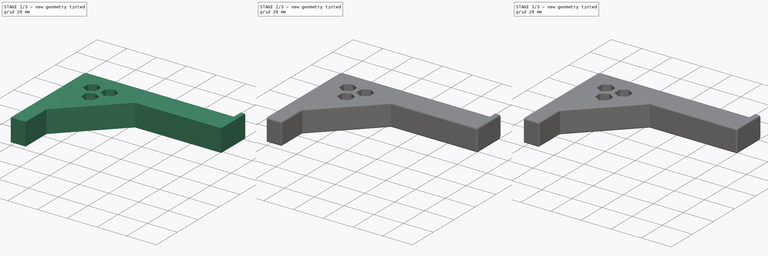
[diagram: build sequence overview — one tinted view per stage of 3, left to right]
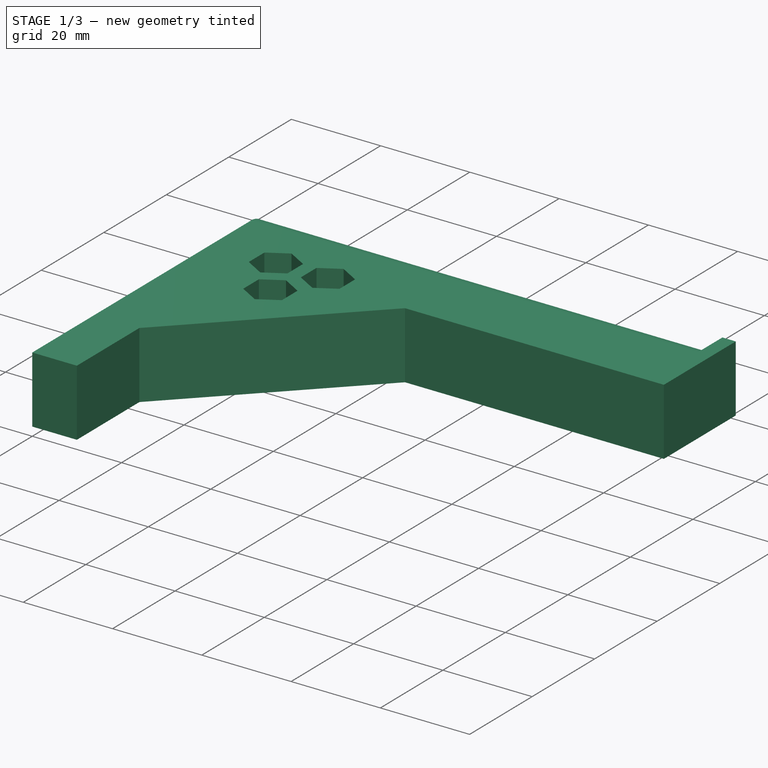
[diagram: stage 1 of 3 — iso view after this stage's code; geometry added in this stage tinted green]
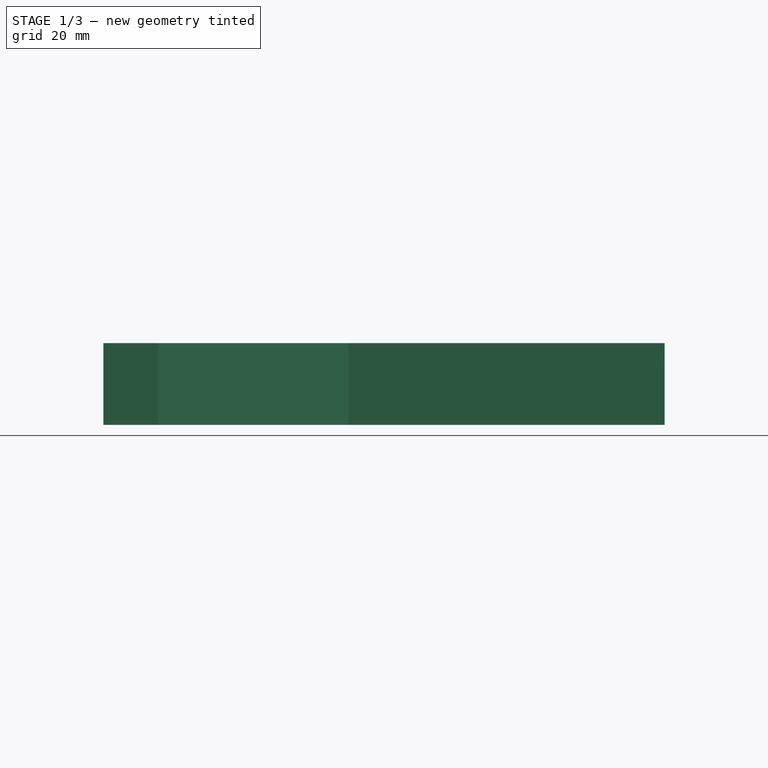
[diagram: stage 1 of 3 — front view after this stage's code; geometry added in this stage tinted green]
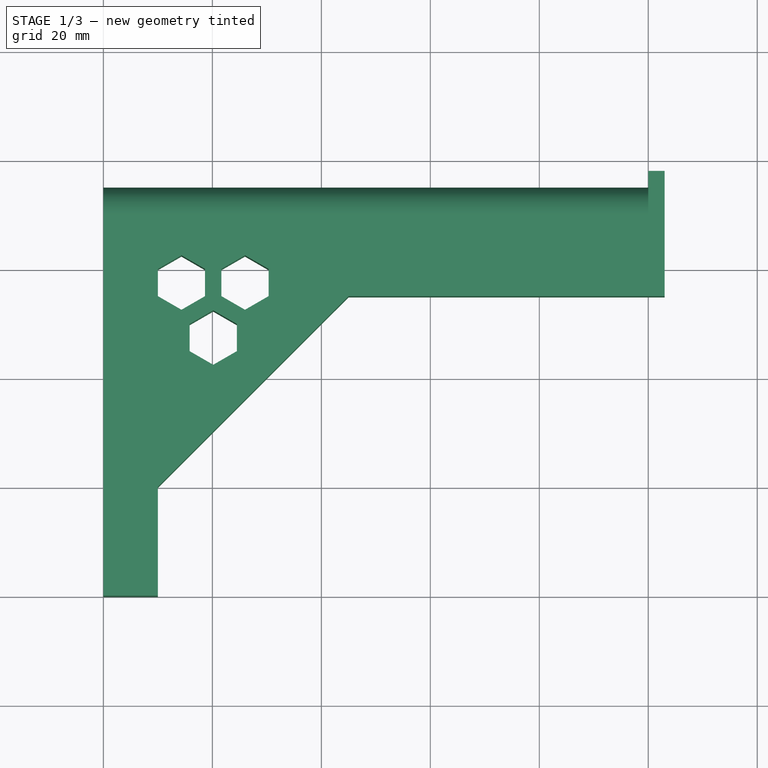
[diagram: stage 1 of 3 — top view after this stage's code; geometry added in this stage tinted green]
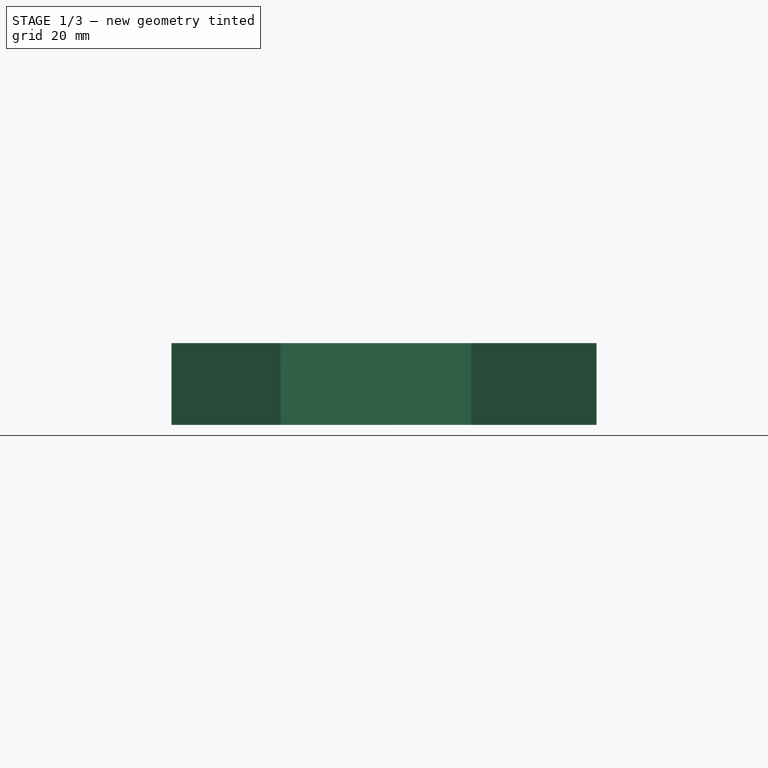
[diagram: stage 1 of 3 — right view after this stage's code; geometry added in this stage tinted green]
FCSTD DOCUMENT  (FreeCAD 0.19R)
Label: HeadPhoneHolder_NEC
License: All rights reserved
LicenseURL: http://en.wikipedia.org/wiki/All_rights_reserved
objects: Sketcher::SketchObject×4, PartDesign::Fillet×4, PartDesign::Pad×2, PartDesign::Body×1
note: 17 computed .brp shape members not serialized (recipe doc carries the construction recipe); baked Part::Feature solids carry a one-line shape summary decoded from their .brp

FEATURE [Sketcher::SketchObject] Sketch
  FullyConstrained = false
  MapMode = 5
  Support = -> [XY_Plane]
  sketch-geometry (35):
    g0: LineSegment StartX=0 StartY=0 StartZ=0 EndX=0 EndY=75 EndZ=0
    g1: LineSegment StartX=0 StartY=75 StartZ=0 EndX=100 EndY=75 EndZ=0
    g2: LineSegment StartX=103 StartY=55 StartZ=0 EndX=45 EndY=55 EndZ=0
    g3: LineSegment StartX=45 StartY=55 StartZ=0 EndX=10 EndY=20 EndZ=0
    g4: LineSegment StartX=10 StartY=20 StartZ=0 EndX=10 EndY=0 EndZ=0
    g5: LineSegment StartX=10 StartY=0 StartZ=0 EndX=0 EndY=0 EndZ=0
    g6: LineSegment StartX=100 StartY=75 StartZ=0 EndX=100 EndY=78 EndZ=0
    g7: LineSegment StartX=100 StartY=78 StartZ=0 EndX=103 EndY=78 EndZ=0
    g8: LineSegment StartX=103 StartY=78 StartZ=0 EndX=103 EndY=55 EndZ=0
    g9: LineSegment StartX=10 StartY=20 StartZ=0 EndX=10 EndY=55 EndZ=0
    g10: LineSegment StartX=10 StartY=55 StartZ=0 EndX=45 EndY=55 EndZ=0
    g11: LineSegment StartX=18.6603 StartY=55 StartZ=0 EndX=18.6603 EndY=60 EndZ=0
    g12: LineSegment StartX=18.6603 StartY=60 StartZ=0 EndX=14.3301 EndY=62.5 EndZ=0
    g13: LineSegment StartX=14.3301 StartY=62.5 StartZ=0 EndX=10 EndY=60 EndZ=0
    g14: LineSegment StartX=10 StartY=60 StartZ=0 EndX=10 EndY=55 EndZ=0
    g15: LineSegment StartX=10 StartY=55 StartZ=0 EndX=14.3301 EndY=52.5 EndZ=0
    g16: LineSegment StartX=14.3301 StartY=52.5 StartZ=0 EndX=18.6603 EndY=55 EndZ=0
    g17: Circle CenterX=14.3301 CenterY=57.5 CenterZ=0 NormalX=0 NormalY=0 NormalZ=1 AngleXU=0 Radius=5
    g18: LineSegment StartX=24.4904 StartY=44.9019 StartZ=0 EndX=24.4904 EndY=49.9019 EndZ=0
    g19: LineSegment StartX=24.4904 StartY=49.9019 StartZ=0 EndX=20.1603 EndY=52.4019 EndZ=0
    g20: LineSegment StartX=20.1603 StartY=52.4019 StartZ=0 EndX=15.8301 EndY=49.9019 EndZ=0
    g21: LineSegment StartX=15.8301 StartY=49.9019 StartZ=0 EndX=15.8301 EndY=44.9019 EndZ=0
    g22: LineSegment StartX=15.8301 StartY=44.9019 StartZ=0 EndX=20.1603 EndY=42.4019 EndZ=0
    g23: LineSegment StartX=20.1603 StartY=42.4019 StartZ=0 EndX=24.4904 EndY=44.9019 EndZ=0
    g24: Circle CenterX=20.1603 CenterY=47.4019 CenterZ=0 NormalX=0 NormalY=0 NormalZ=1 AngleXU=0 Radius=5
    g25: LineSegment StartX=30.3205 StartY=55 StartZ=0 EndX=30.3205 EndY=60 EndZ=0
    g26: LineSegment StartX=30.3205 StartY=60 StartZ=0 EndX=25.9904 EndY=62.5 EndZ=0
    g27: LineSegment StartX=25.9904 StartY=62.5 StartZ=0 EndX=21.6603 EndY=60 EndZ=0
    g28: LineSegment StartX=21.6603 StartY=60 StartZ=0 EndX=21.6603 EndY=55 EndZ=0
    g29: LineSegment StartX=21.6603 StartY=55 StartZ=0 EndX=25.9904 EndY=52.5 EndZ=0
    g30: LineSegment StartX=25.9904 StartY=52.5 StartZ=0 EndX=30.3205 EndY=55 EndZ=0
    g31: Circle CenterX=25.9904 CenterY=57.5 CenterZ=0 NormalX=0 NormalY=0 NormalZ=1 AngleXU=0 Radius=5
    g32: LineSegment StartX=18.6603 StartY=55 StartZ=0 EndX=21.6603 EndY=55 EndZ=0
    g33: LineSegment StartX=21.6603 StartY=55 StartZ=0 EndX=20.1603 EndY=52.4019 EndZ=0
    g34: LineSegment StartX=20.1603 StartY=52.4019 StartZ=0 EndX=18.6603 EndY=55 EndZ=0
  constraints (87):
    c: Vertical(g0)
    c: Coincident(g0,g1)
    c: Horizontal(g1)
    c: Horizontal(g2)
    c: Coincident(g2,g3)
    c: Coincident(g3,g4)
    c: Vertical(g4)
    c: Coincident(g4,g5)
    c: Coincident(g5,g0)
    c: Horizontal(g5)
    c: DistanceX(g1,g1) = 100
    c: DistanceX(g5,g5) = 10
    c: Angle(g4,g3) = 2.35619
    c: DistanceY(g0,g0) = 75
    c: DistanceY(g4,g4) = 20
    c: Coincident(g0,g-1)
    c: Coincident(g1,g6)
    c: Vertical(g6)
    c: Coincident(g6,g7)
    c: Horizontal(g7)
    c: Coincident(g7,g8)
    c: Coincident(g8,g2)
    c: Vertical(g8)
    c: DistanceX(g7,g7) = 3
    c: DistanceY(g6,g6) = 3
    c: DistanceY(g8,g8) = 23
    c: Coincident(g3,g9)
    c: Vertical(g9)
    c: Coincident(g10,g2)
    c: Horizontal(g10)
    c: Coincident(g11,g12)
    c: Coincident(g12,g13)
    c: Coincident(g13,g14)
    c: Coincident(g14,g15)
    c: Coincident(g15,g16)
    c: Coincident(g16,g11)
    c: Equal(g11, g12-g16) x5
    c: PointOnObject(g11,g17)
    c: PointOnObject(g12,g17)
    c: PointOnObject(g13,g17)
    c: PointOnObject(g14,g17)
    c: PointOnObject(g15,g17)
    c: PointOnObject(g16,g17)
    c: Vertical(g14)
    c: Coincident(g18,g19)
    c: Coincident(g19,g20)
    c: Coincident(g20,g21)
    c: Coincident(g21,g22)
    c: Coincident(g22,g23)
    c: Coincident(g23,g18)
    c: Equal(g18, g19-g23) x5
    c: PointOnObject(g18,g24)
    c: PointOnObject(g19,g24)
    c: PointOnObject(g20,g24)
    c: PointOnObject(g21,g24)
    c: PointOnObject(g22,g24)
    c: PointOnObject(g23,g24)
    c: Vertical(g21)
    c: Equal(g21,g14)
    c: Coincident(g25,g26)
    c: Coincident(g26,g27)
    c: Coincident(g27,g28)
    c: Coincident(g28,g29)
    c: Coincident(g29,g30)
    c: Coincident(g30,g25)
    c: Equal(g25, g26-g30) x5
    c: PointOnObject(g25,g31)
    c: PointOnObject(g26,g31)
    c: PointOnObject(g27,g31)
    c: PointOnObject(g28,g31)
    c: PointOnObject(g29,g31)
    c: PointOnObject(g30,g31)
    c: Vertical(g28)
    c: Equal(g28,g14)
    c: Horizontal(g11,g27)
    c: DistanceY(g18,g18) = 5
    c: Coincident(g11,g32)
    c: Coincident(g32,g28)
    c: Coincident(g32,g33)
    c: Coincident(g33,g19)
    c: Coincident(g33,g34)
    c: Coincident(g34,g32)
    c: Angle(g34,g32) = 1.0472
    c: Angle(g32,g33) = 1.0472
    c: DistanceX(g32,g32) = 3
    c: Vertical(g14,g9)
    c: Horizontal(g14,g2)
FEATURE [PartDesign::Pad] Pad
  Direction = (1,1,1)
  Length = 15
  Length2 = 100
  Profile = -> Sketch
  Refine = true
  Type = 0
FEATURE [PartDesign::Fillet] Fillet
  Base = -> Pad [Edge7,Edge6]
  BaseFeature = -> Pad
  Radius = 5
  Refine = true
  SupportTransform = false
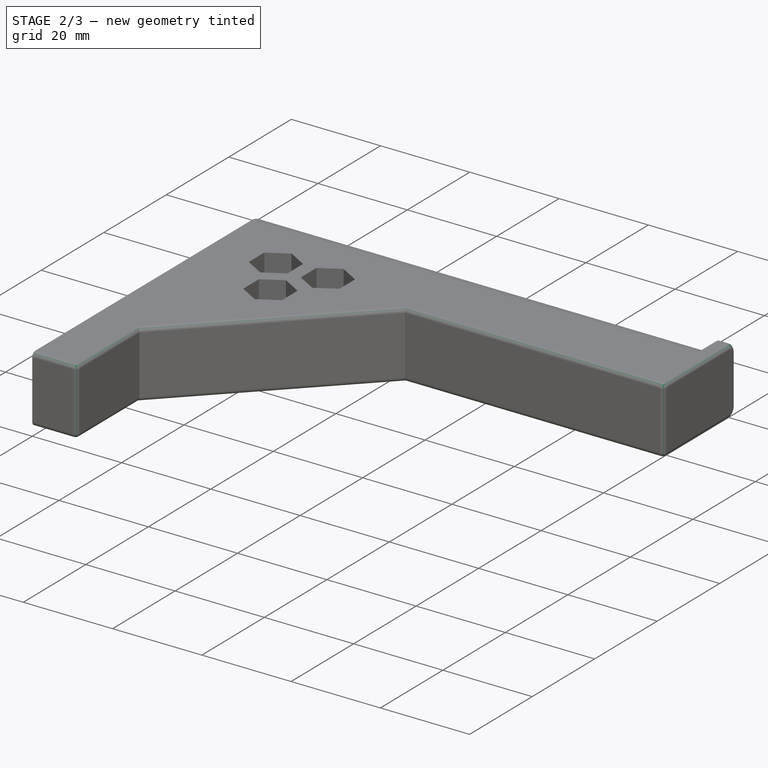
[diagram: stage 2 of 3 — iso view after this stage's code; geometry added in this stage tinted green]
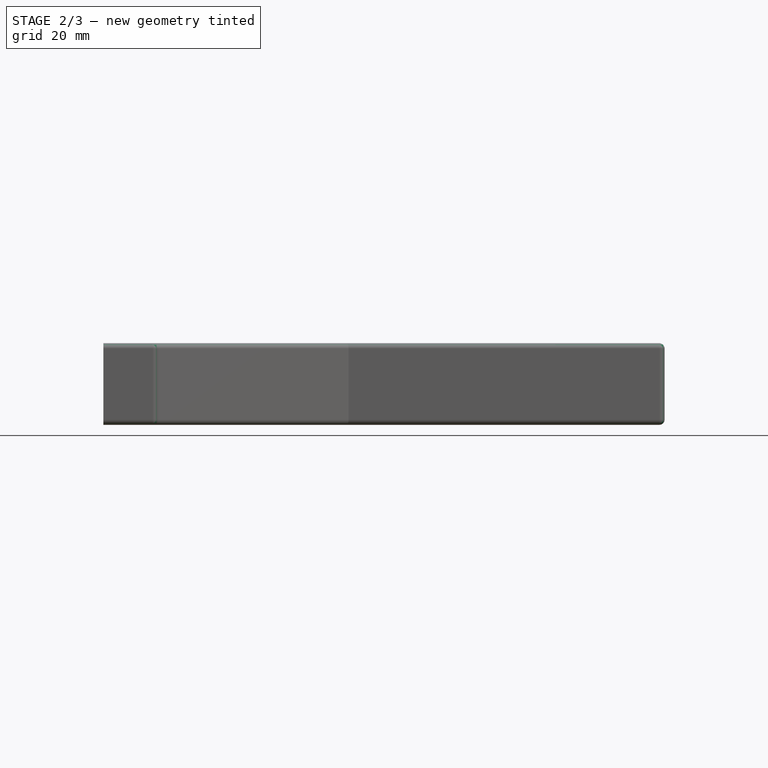
[diagram: stage 2 of 3 — front view after this stage's code; geometry added in this stage tinted green]
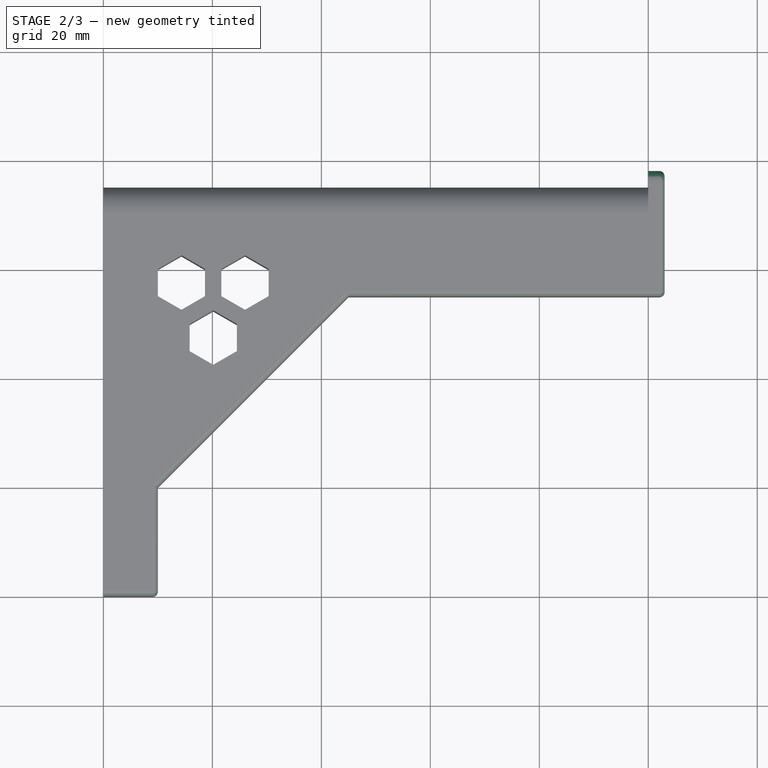
[diagram: stage 2 of 3 — top view after this stage's code; geometry added in this stage tinted green]
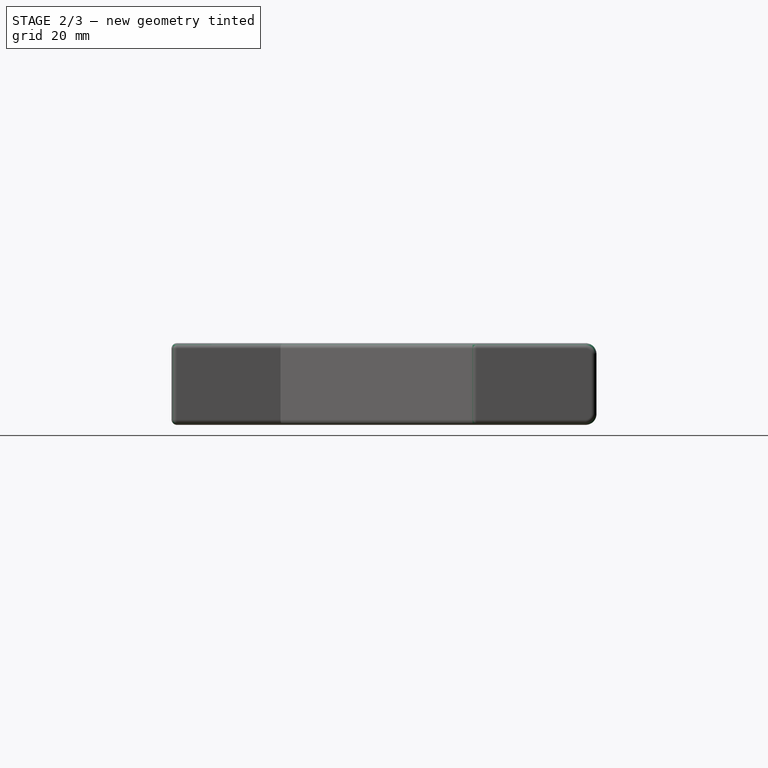
[diagram: stage 2 of 3 — right view after this stage's code; geometry added in this stage tinted green]
FEATURE [Sketcher::SketchObject] Sketch001
  FullyConstrained = true
  MapMode = 5
  Placement = pos=(0,0,0) rot=(0.57735,0.57735,0.57735;2.0944rad)
  Support = -> [YZ_Plane]
FEATURE [Sketcher::SketchObject] Sketch002
  FullyConstrained = true
  MapMode = 5
  Placement = pos=(0,0,0) rot=(0.57735,0.57735,0.57735;2.0944rad)
  Support = -> [YZ_Plane]
FEATURE [PartDesign::Fillet] Fillet001
  Base = -> Fillet [Edge45,Edge19]
  BaseFeature = -> Fillet
  Radius = 2
  Refine = true
  SupportTransform = false
FEATURE [PartDesign::Fillet] Fillet002
  Base = -> Fillet001 [Edge55,Edge52,Edge8,Edge10,Edge46,Edge6,Edge42,Edge54,Edge9,Edge53,Edge41,Edge4,Edge39,Edge40,Edge38]
  BaseFeature = -> Fillet001
  Radius = 1
  Refine = true
  SupportTransform = false
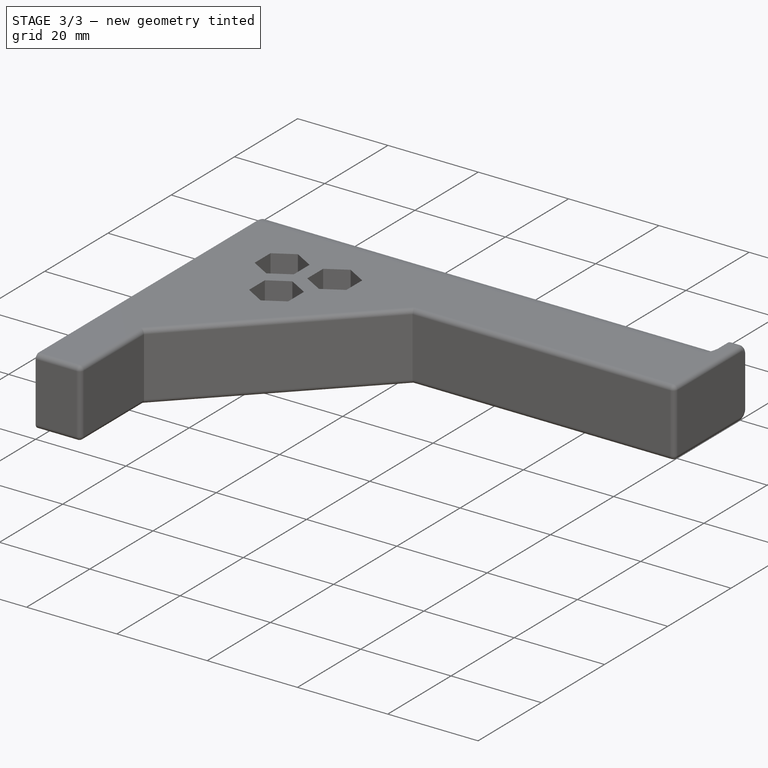
[diagram: stage 3 of 3 — iso view after this stage's code; geometry added in this stage tinted green]
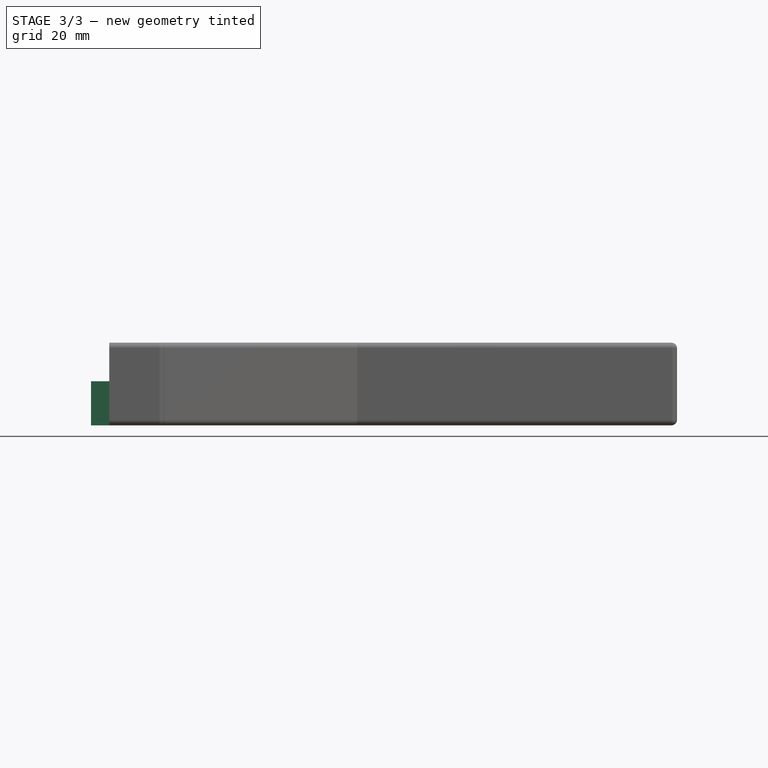
[diagram: stage 3 of 3 — front view after this stage's code; geometry added in this stage tinted green]
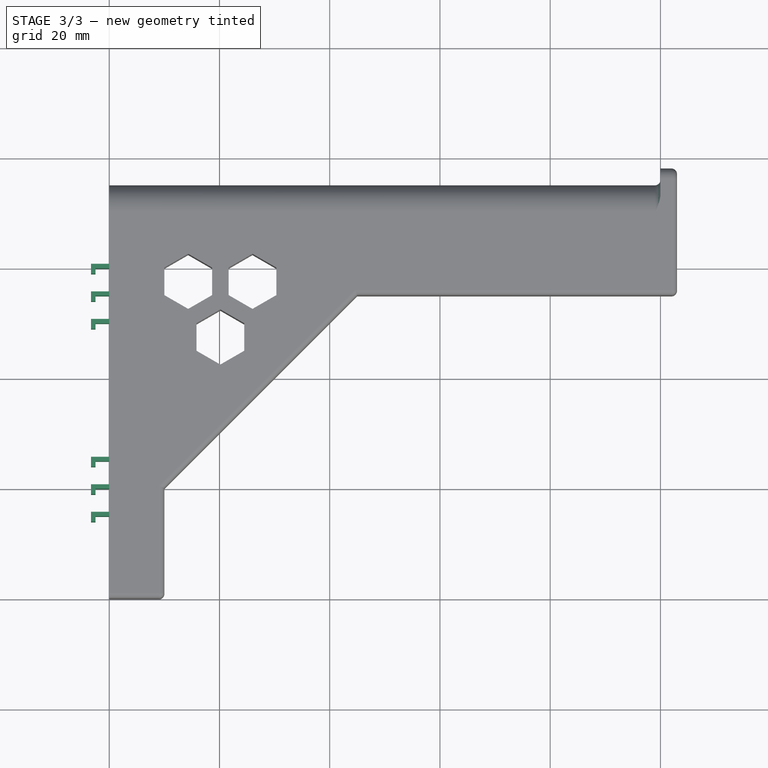
[diagram: stage 3 of 3 — top view after this stage's code; geometry added in this stage tinted green]
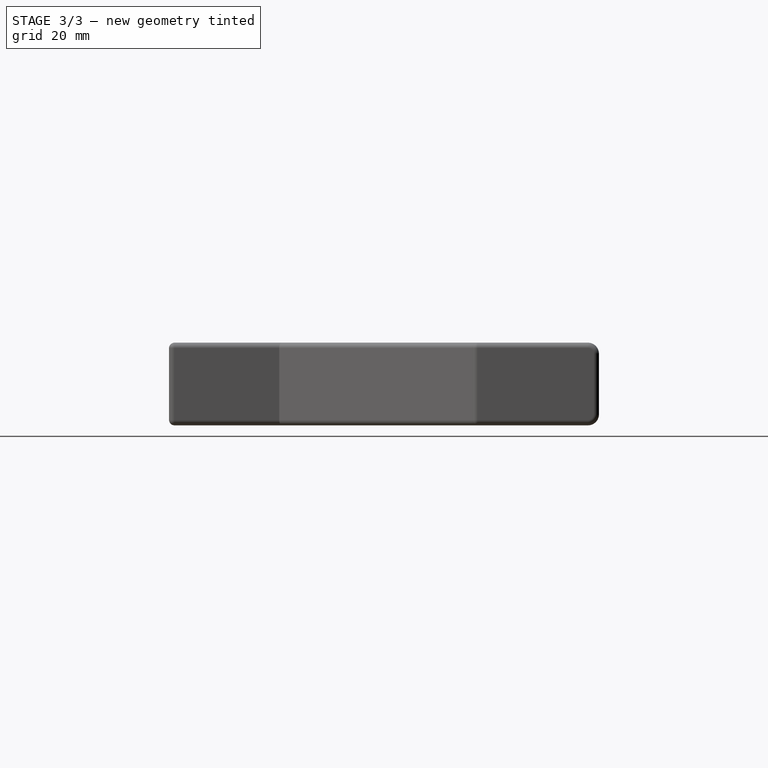
[diagram: stage 3 of 3 — right view after this stage's code; geometry added in this stage tinted green]
FEATURE [PartDesign::Fillet] Fillet003
  Base = -> Fillet002 [Edge40,Edge38,Edge36]
  BaseFeature = -> Fillet002
  Radius = 1
  Refine = true
  SupportTransform = false
FEATURE [Sketcher::SketchObject] Sketch003
  FullyConstrained = true
  MapMode = 5
  Support = -> [XY_Plane]
  expr: Constraints[107] = (3.2 + 1.8) * 5
  sketch-geometry (36):
    g0: LineSegment StartX=0 StartY=60.8 StartZ=0 EndX=-3.3 EndY=60.8 EndZ=0
    g1: LineSegment StartX=-3.3 StartY=60.8 StartZ=0 EndX=-3.3 EndY=59 EndZ=0
    g2: LineSegment StartX=-3.3 StartY=59 StartZ=0 EndX=-2.5 EndY=59 EndZ=0
    g3: LineSegment StartX=-2.5 StartY=59 StartZ=0 EndX=-2.5 EndY=60 EndZ=0
    g4: LineSegment StartX=-2.5 StartY=60 StartZ=0 EndX=0 EndY=60 EndZ=0
    g5: LineSegment StartX=0 StartY=60 StartZ=0 EndX=0 EndY=60.8 EndZ=0
    g6: LineSegment StartX=0 StartY=55 StartZ=0 EndX=0 EndY=55.8 EndZ=0
    g7: LineSegment StartX=0 StartY=55.8 StartZ=0 EndX=-3.3 EndY=55.8 EndZ=0
    g8: LineSegment StartX=-3.3 StartY=55.8 StartZ=0 EndX=-3.3 EndY=54 EndZ=0
    g9: LineSegment StartX=-3.3 StartY=54 StartZ=0 EndX=-2.5 EndY=54 EndZ=0
    g10: LineSegment StartX=-2.5 StartY=54 StartZ=0 EndX=-2.5 EndY=55 EndZ=0
    g11: LineSegment StartX=-2.5 StartY=55 StartZ=0 EndX=0 EndY=55 EndZ=0
    g12: LineSegment StartX=0 StartY=50.8 StartZ=0 EndX=-3.3 EndY=50.8 EndZ=0
    g13: LineSegment StartX=-3.3 StartY=50.8 StartZ=0 EndX=-3.3 EndY=49 EndZ=0
    g14: LineSegment StartX=-3.3 StartY=49 StartZ=0 EndX=-2.5 EndY=49 EndZ=0
    g15: LineSegment StartX=-2.5 StartY=49 StartZ=0 EndX=-2.5 EndY=50 EndZ=0
    g16: LineSegment StartX=-2.5 StartY=50 StartZ=0 EndX=0 EndY=50 EndZ=0
    g17: LineSegment StartX=0 StartY=50 StartZ=0 EndX=0 EndY=50.8 EndZ=0
    g18: LineSegment StartX=0 StartY=25.8 StartZ=0 EndX=-3.3 EndY=25.8 EndZ=0
    g19: LineSegment StartX=-3.3 StartY=25.8 StartZ=0 EndX=-3.3 EndY=24 EndZ=0
    g20: LineSegment StartX=-3.3 StartY=24 StartZ=0 EndX=-2.5 EndY=24 EndZ=0
    g21: LineSegment StartX=-2.5 StartY=24 StartZ=0 EndX=-2.5 EndY=25 EndZ=0
    g22: LineSegment StartX=-2.5 StartY=25 StartZ=0 EndX=0 EndY=25 EndZ=0
    g23: LineSegment StartX=0 StartY=25 StartZ=0 EndX=0 EndY=25.8 EndZ=0
    g24: LineSegment StartX=0 StartY=20.8 StartZ=0 EndX=-3.3 EndY=20.8 EndZ=0
    g25: LineSegment StartX=-3.3 StartY=20.8 StartZ=0 EndX=-3.3 EndY=19 EndZ=0
    g26: LineSegment StartX=-3.3 StartY=19 StartZ=0 EndX=-2.5 EndY=19 EndZ=0
    g27: LineSegment StartX=-2.5 StartY=19 StartZ=0 EndX=-2.5 EndY=20 EndZ=0
    g28: LineSegment StartX=-2.5 StartY=20 StartZ=0 EndX=0 EndY=20 EndZ=0
    g29: LineSegment StartX=0 StartY=20 StartZ=0 EndX=0 EndY=20.8 EndZ=0
    g30: LineSegment StartX=0 StartY=15.8 StartZ=0 EndX=-3.3 EndY=15.8 EndZ=0
    g31: LineSegment StartX=-3.3 StartY=15.8 StartZ=0 EndX=-3.3 EndY=14 EndZ=0
    g32: LineSegment StartX=-3.3 StartY=14 StartZ=0 EndX=-2.5 EndY=14 EndZ=0
    g33: LineSegment StartX=-2.5 StartY=14 StartZ=0 EndX=-2.5 EndY=15 EndZ=0
    g34: LineSegment StartX=-2.5 StartY=15 StartZ=0 EndX=0 EndY=15 EndZ=0
    g35: LineSegment StartX=0 StartY=15 StartZ=0 EndX=0 EndY=15.8 EndZ=0
  constraints (108):
    c: Horizontal(g0)
    c: Coincident(g0,g1)
    c: Vertical(g1)
    c: Coincident(g1,g2)
    c: Horizontal(g2)
    c: Coincident(g2,g3)
    c: Vertical(g3)
    c: Coincident(g3,g4)
    c: Horizontal(g4)
    c: Coincident(g4,g5)
    c: Coincident(g5,g0)
    c: Vertical(g5)
    c: DistanceY(g1,g1) = 1.8
    c: DistanceY(g5,g5) = 0.8
    c: DistanceX(g4,g4) = 2.5
    c: DistanceX(g2,g2) = 0.8
    c: PointOnObject(g4,g-2)
    c: DistanceY(g-1,g4) = 60
    c: PointOnObject(g6,g-2)
    c: PointOnObject(g6,g-2)
    c: Coincident(g6,g7)
    c: Horizontal(g7)
    c: Coincident(g7,g8)
    c: Vertical(g8)
    c: Coincident(g8,g9)
    c: Horizontal(g9)
    c: Coincident(g9,g10)
    c: Vertical(g10)
    c: Coincident(g10,g11)
    c: Coincident(g11,g6)
    c: Horizontal(g11)
    c: Equal(g0,g7)
    c: Equal(g1,g8)
    c: Equal(g2,g9)
    c: Equal(g3,g10)
    c: DistanceY(g7,g1) = 3.2
    c: PointOnObject(g12,g-2)
    c: Horizontal(g12)
    c: Coincident(g12,g13)
    c: Vertical(g13)
    c: Coincident(g13,g14)
    c: Horizontal(g14)
    c: Coincident(g14,g15)
    c: Vertical(g15)
    c: Coincident(g15,g16)
    c: PointOnObject(g16,g-2)
    c: Horizontal(g16)
    c: Coincident(g16,g17)
    c: Coincident(g17,g12)
    c: Equal(g7,g12)
    c: Equal(g8,g13)
    c: Equal(g11,g16)
    c: Equal(g6,g17)
    c: DistanceY(g12,g8) = 3.2
    c: PointOnObject(g18,g-2)
    c: Horizontal(g18)
    c: Coincident(g18,g19)
    c: Vertical(g19)
    c: Coincident(g19,g20)
    c: Horizontal(g20)
    c: Coincident(g20,g21)
    c: Vertical(g21)
    c: Coincident(g21,g22)
    c: PointOnObject(g22,g-2)
    c: Horizontal(g22)
    c: Coincident(g22,g23)
    c: Coincident(g23,g18)
    c: PointOnObject(g24,g-2)
    c: Horizontal(g24)
    c: Coincident(g24,g25)
    c: Vertical(g25)
    c: Coincident(g25,g26)
    c: Horizontal(g26)
    c: Coincident(g26,g27)
    c: Vertical(g27)
    c: Coincident(g27,g28)
    c: PointOnObject(g28,g-2)
    c: Horizontal(g28)
    c: Coincident(g28,g29)
    c: Coincident(g29,g24)
    c: PointOnObject(g30,g-2)
    c: Horizontal(g30)
    c: Coincident(g30,g31)
    c: Vertical(g31)
    c: Coincident(g31,g32)
    c: Horizontal(g32)
    c: Coincident(g32,g33)
    c: Vertical(g33)
    c: Coincident(g33,g34)
    c: PointOnObject(g34,g-2)
    c: Horizontal(g34)
    c: Coincident(g34,g35)
    c: Coincident(g35,g30)
    c: Equal(g12,g18)
    c: Equal(g18,g24)
    c: Equal(g24,g30)
    c: Equal(g16,g22)
    c: Equal(g22,g28)
    c: Equal(g28,g34)
    c: Equal(g13,g19)
    c: Equal(g19,g25)
    c: Equal(g25,g31)
    c: Equal(g17,g23)
    c: Equal(g23,g29)
    c: Equal(g29,g35)
    c: DistanceY(g24,g19) = 3.2
    c: DistanceY(g30,g25) = 3.2
    c: DistanceY(g18,g12) = 25
FEATURE [PartDesign::Pad] Pad001
  BaseFeature = -> Fillet003
  Direction = (1,1,1)
  Length = 8
  Length2 = 100
  Profile = -> Sketch003
  Refine = true
  Type = 0
FEATURE [PartDesign::Body] Body
  Group = -> [Sketch,Pad,Fillet,Sketch001,Sketch002,Fillet001,Fillet002,Fillet003,Sketch003,Pad001]
  Origin = -> Origin
  Tip = -> Pad001
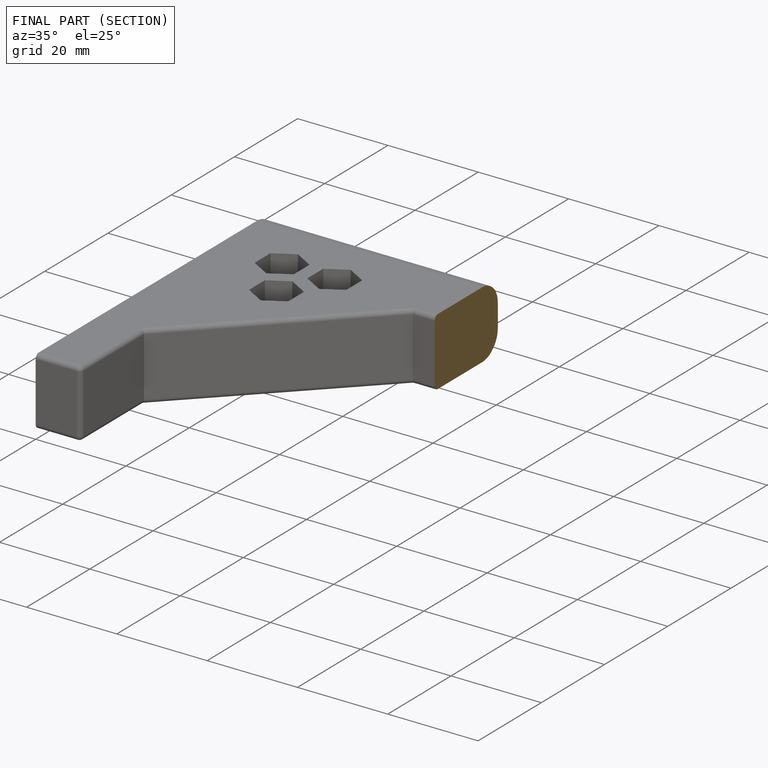
[diagram: finished part — half-section view (interior)]
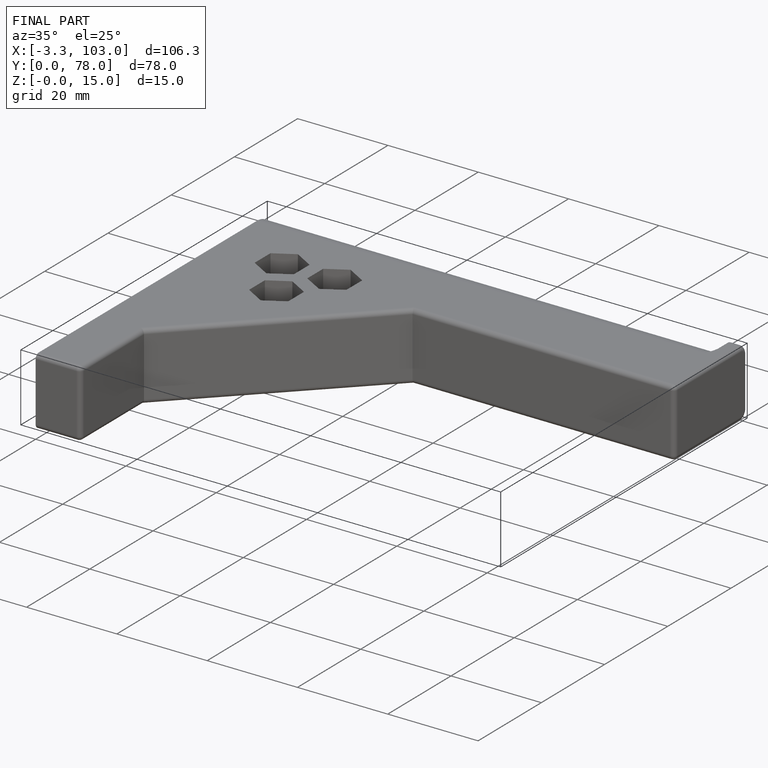
[diagram: finished part — iso view with bounding-box wireframe]
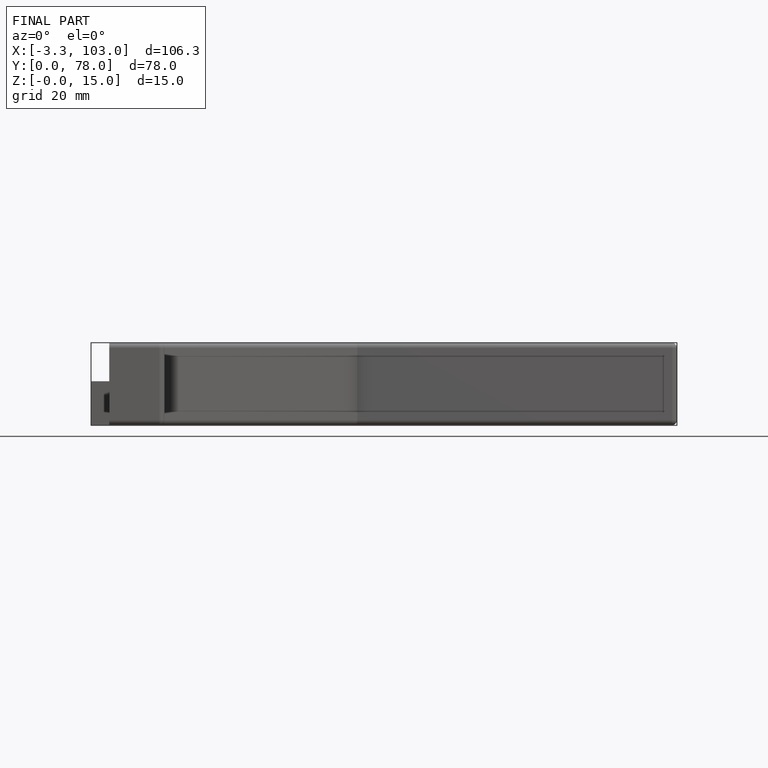
[diagram: finished part — front view with bounding-box wireframe]
